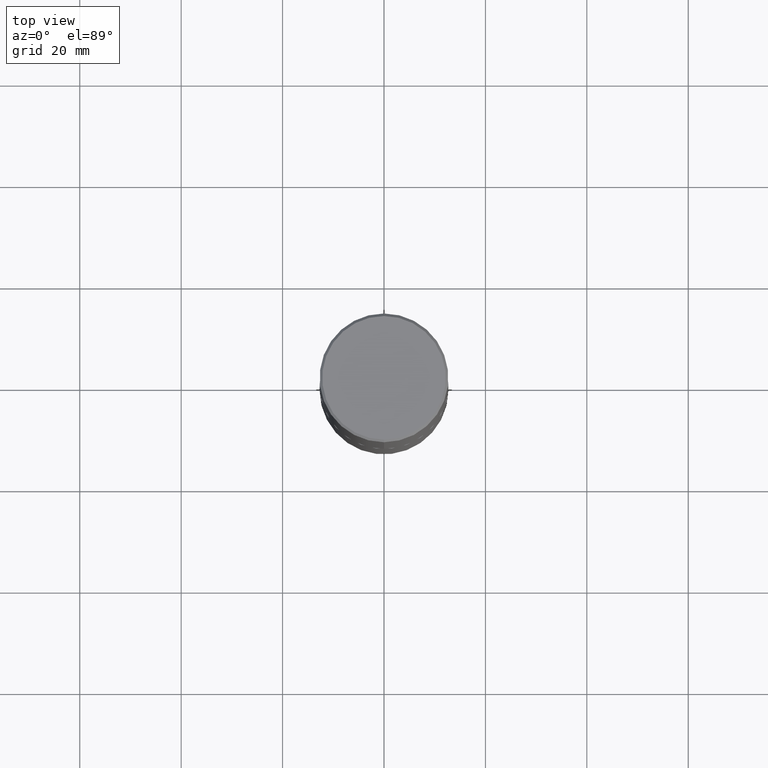
[diagram: clean part render]
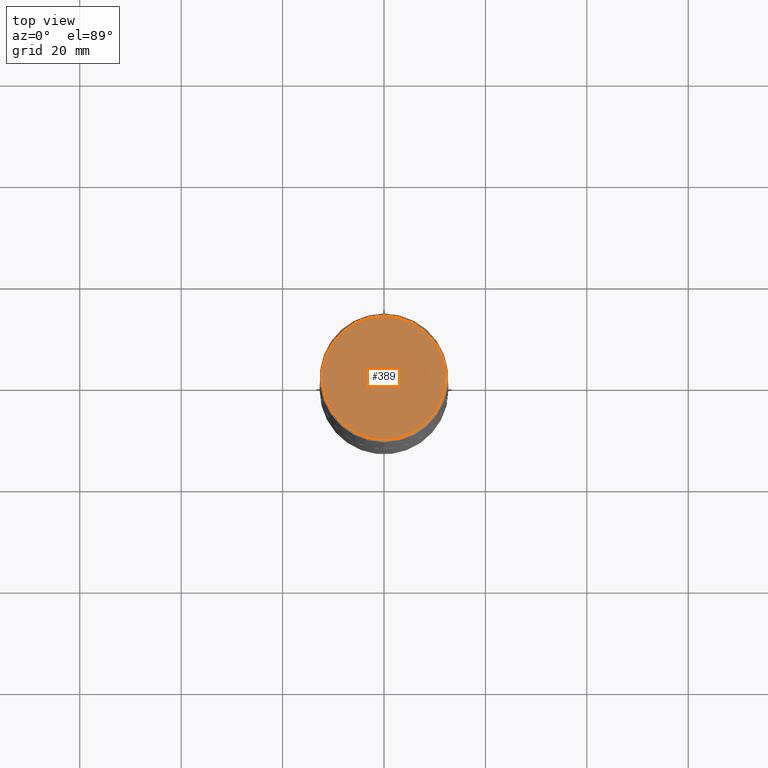
[diagram: same view with one face highlighted and labeled with its STEP entity id]
A machine part, top view. The second image highlights one B-rep face of the part: STEP entity #389.
In plain terms, the highlighted planar face has unit normal (0, -0, -1).
Its self-contained STEP definition (entity closure, byte-faithful):
#2 = AXIS2_PLACEMENT_3D ( 'NONE', #20, #144, #284 ) ;
#19 = VERTEX_POINT ( 'NONE', #170 ) ;
#20 = CARTESIAN_POINT ( 'NONE',  ( 2.619453942708643347E-45, -3.738203133764044518E-31, -1.070905291231867826E-16 ) ) ;
#93 = CARTESIAN_POINT ( 'NONE',  ( 3.351822085289408337E-15, 0.4800000000000000933, -1.729078590335627126E-15 ) ) ;
#121 = DIRECTION ( 'NONE',  ( -2.446018302604025378E-29, 3.490694428695902798E-15, 1.000000000000000000 ) ) ;
#144 = DIRECTION ( 'NONE',  ( -2.446018302604025378E-29, 3.490694428695902798E-15, 1.000000000000000000 ) ) ;
#170 = CARTESIAN_POINT ( 'NONE',  ( -3.361644018908050055E-15, -0.4800000000000000933, 1.568442796650846842E-15 ) ) ;
#180 = DIRECTION ( 'NONE',  ( -6.982962677686265922E-15, -1.000000000000000000, 3.490694428695902798E-15 ) ) ;
#210 = EDGE_LOOP ( 'NONE', ( #357, #387 ) ) ;
#215 = CARTESIAN_POINT ( 'NONE',  ( 2.619453942708643347E-45, -3.738203133764044518E-31, -1.070905291231867826E-16 ) ) ;
#231 = AXIS2_PLACEMENT_3D ( 'NONE', #93, #411, #342 ) ;
#268 = CIRCLE ( 'NONE', #2, 0.4800000000000000933 ) ;
#284 = DIRECTION ( 'NONE',  ( -6.982962677686265922E-15, -1.000000000000000000, 3.490694428695902798E-15 ) ) ;
#305 = AXIS2_PLACEMENT_3D ( 'NONE', #215, #121, #180 ) ;
#312 = CARTESIAN_POINT ( 'NONE',  ( 3.421651712066271240E-15, 0.4800000000000000933, -1.782623854897220357E-15 ) ) ;
#321 = CIRCLE ( 'NONE', #305, 0.4800000000000000933 ) ;
#335 = EDGE_CURVE ( 'NONE', #19, #367, #321, .T. ) ;
#342 = DIRECTION ( 'NONE',  ( 6.982962677686265922E-15, 1.000000000000000000, -3.490694428695902798E-15 ) ) ;
#357 = ORIENTED_EDGE ( 'NONE', *, *, #369, .T. ) ;
#367 = VERTEX_POINT ( 'NONE', #312 ) ;
#368 = PLANE ( 'NONE',  #231 ) ;
#369 = EDGE_CURVE ( 'NONE', #367, #19, #268, .T. ) ;
#387 = ORIENTED_EDGE ( 'NONE', *, *, #335, .T. ) ;
#389 = ADVANCED_FACE ( 'NONE', ( #417 ), #368, .F. ) ;
#411 = DIRECTION ( 'NONE',  ( 2.446018302604025097E-29, -3.490694428695902798E-15, -1.000000000000000000 ) ) ;
#417 = FACE_OUTER_BOUND ( 'NONE', #210, .T. ) ;